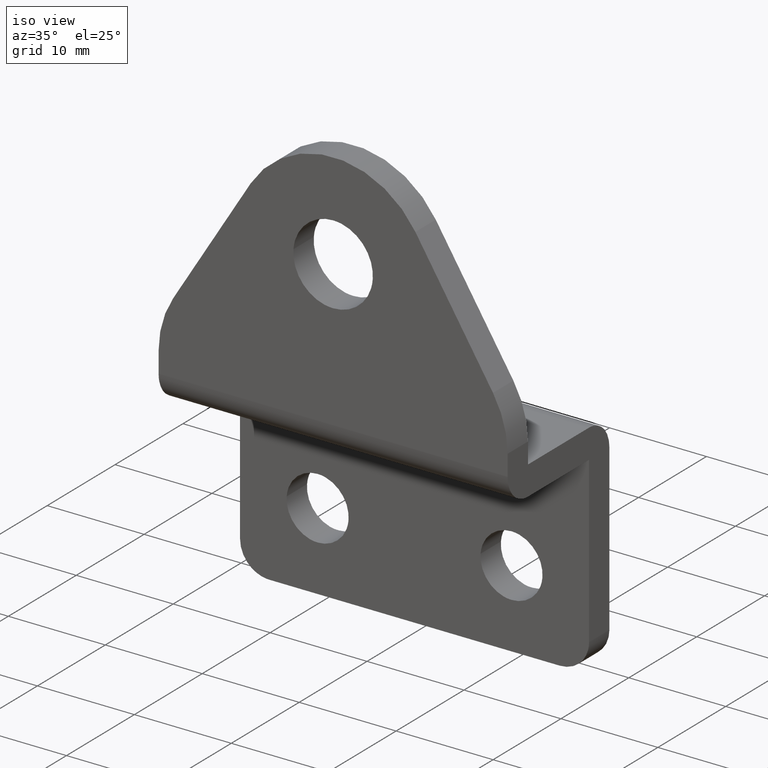
[diagram: clean part render]
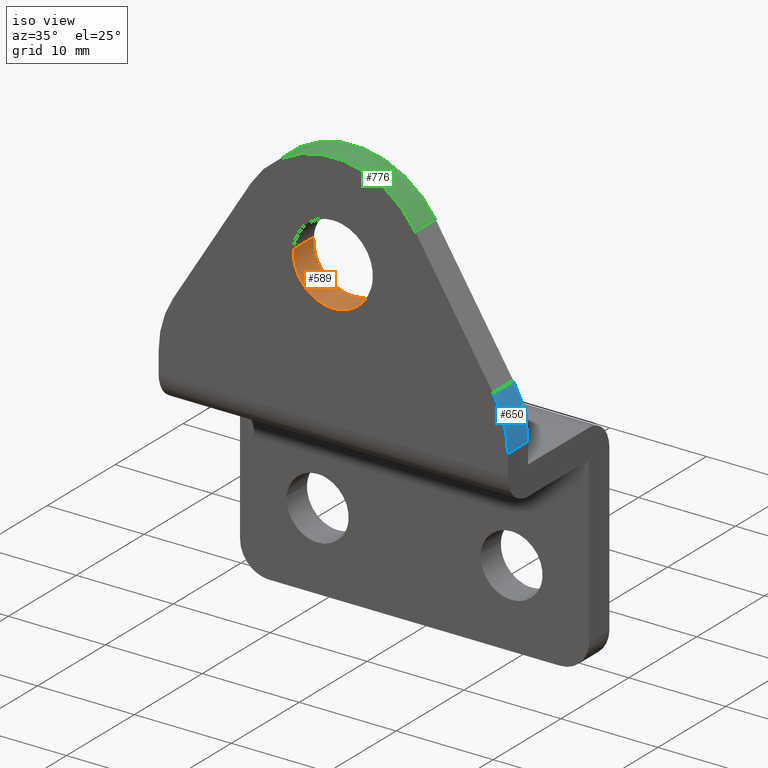
[diagram: same view with three faces highlighted in distinct colors, each labeled with its STEP entity id]
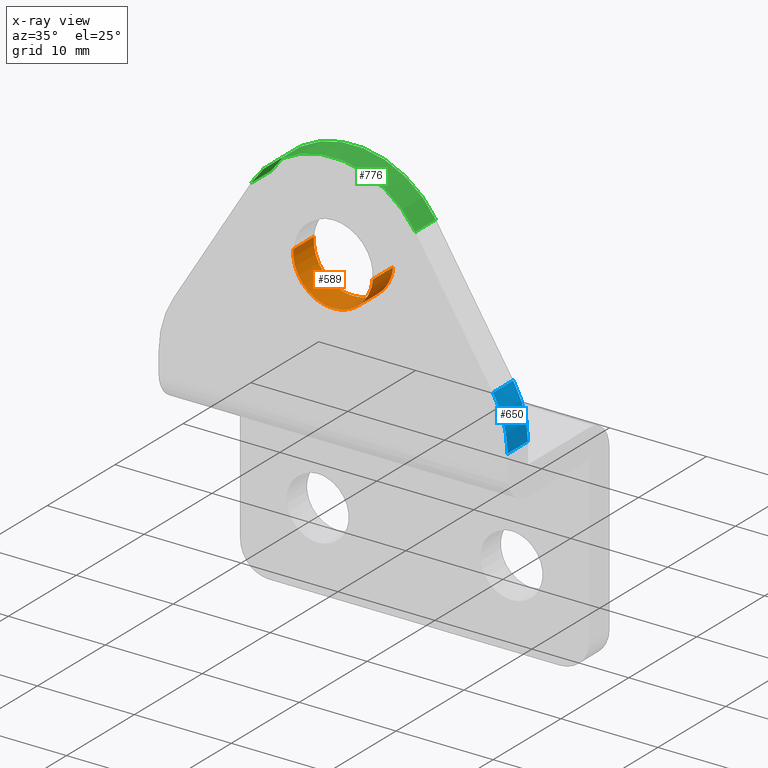
[diagram: x-ray of the same camera — body ghosted, the three highlighted faces saturated]
A machine part, iso view with three faces highlighted in distinct colors.
The next image is the same camera in x-ray (body ghosted, the three faces saturated) — at least one of them is partly hidden behind the body in this view.
Their STEP definitions:

[orange] entity #589 — the highlighted face is a freeform B-spline surface patch.
#428=CARTESIAN_POINT('',(-4.087361068302946,-15.0,38.321682292520741));
#429=VERTEX_POINT('',#428);
#443=CARTESIAN_POINT('',(-4.087361068302947,-12.000000000000121,38.321682292520741));
#444=VERTEX_POINT('',#443);
#445=CARTESIAN_POINT('',(-4.087361068302946,-15.0,38.321682292520741));
#446=CARTESIAN_POINT('',(-4.087361068302947,-12.000000000000121,38.321682292520741));
#447=QUASI_UNIFORM_CURVE('',1,(#445,#446),.UNSPECIFIED.,.F.,.U.);
#448=EDGE_CURVE('',#429,#444,#447,.T.);
#465=CARTESIAN_POINT('',(4.087361068302946,-12.000000000000121,37.678317707479259));
#466=VERTEX_POINT('',#465);
#482=CARTESIAN_POINT('',(4.087361068302946,-15.0,37.678317707479259));
#483=VERTEX_POINT('',#482);
#484=CARTESIAN_POINT('',(4.087361068302946,-15.0,37.678317707479259));
#485=CARTESIAN_POINT('',(4.087361068302946,-12.000000000000121,37.678317707479259));
#486=QUASI_UNIFORM_CURVE('',1,(#484,#485),.UNSPECIFIED.,.F.,.U.);
#487=EDGE_CURVE('',#483,#466,#486,.T.);
#507=CARTESIAN_POINT('',(4.087361068305824,-15.074999999999999,37.678317707515831));
#508=CARTESIAN_POINT('',(3.765678775821657,-15.074999999999994,33.590956639210013));
#509=CARTESIAN_POINT('',(-0.321682292484167,-15.074999999999999,33.912638931694183));
#510=CARTESIAN_POINT('',(-4.409043360789990,-15.074999999999994,34.234321224178345));
#511=CARTESIAN_POINT('',(-4.087361068305824,-15.074999999999999,38.321682292484169));
#512=CARTESIAN_POINT('',(4.087361068305824,-11.923125000000120,37.678317707515831));
#513=CARTESIAN_POINT('',(3.765678775821657,-11.923125000000120,33.590956639210013));
#514=CARTESIAN_POINT('',(-0.321682292484167,-11.923125000000120,33.912638931694183));
#515=CARTESIAN_POINT('',(-4.409043360789990,-11.923125000000120,34.234321224178345));
#516=CARTESIAN_POINT('',(-4.087361068305824,-11.923125000000120,38.321682292484169));
#524=(BOUNDED_SURFACE()B_SPLINE_SURFACE(2,1,((#507,#512),(#508,#513),(#509,#514),(#510,#515),(#511,#516)),.UNSPECIFIED.,.F.,.F.,.U.)B_SPLINE_SURFACE_WITH_KNOTS((3,2,3),(2,2),(0.0,6.793102422918762,13.586204845837520),(0.0,3.151874999999878),.UNSPECIFIED.)GEOMETRIC_REPRESENTATION_ITEM()RATIONAL_B_SPLINE_SURFACE(((1.0,1.0),(0.707106781186548,0.707106781186548),(1.0,1.0),(0.707106781186548,0.707106781186548),(1.0,1.0)))REPRESENTATION_ITEM('')SURFACE());
#525=CARTESIAN_POINT('',(0.0,-15.0,33.899999999999999));
#526=VERTEX_POINT('',#525);
#527=CARTESIAN_POINT('',(-4.087361068302946,-15.000000000000002,38.321682292520741));
#528=CARTESIAN_POINT('',(-4.100000000000001,-15.000000000000002,38.161089438768194));
#529=CARTESIAN_POINT('',(-4.100000000000001,-15.0,38.0));
#530=CARTESIAN_POINT('',(-4.100000000000001,-14.999999999999996,33.899999999999999));
#531=CARTESIAN_POINT('',(0.0,-15.0,33.899999999999999));
#539=(BOUNDED_CURVE()B_SPLINE_CURVE(2,(#527,#528,#529,#530,#531),.UNSPECIFIED.,.F.,.U.)B_SPLINE_CURVE_WITH_KNOTS((3,2,3),(0.236331300629699,0.250000000000000,0.500000000000000),.UNSPECIFIED.)CURVE()GEOMETRIC_REPRESENTATION_ITEM()RATIONAL_B_SPLINE_CURVE((0.969723356165413,0.983986122577757,1.0,0.707106781186547,1.0))REPRESENTATION_ITEM(''));
#540=EDGE_CURVE('',#429,#526,#539,.T.);
#541=ORIENTED_EDGE('',*,*,#540,.T.);
#542=CARTESIAN_POINT('',(0.0,-15.0,33.899999999999999));
#543=CARTESIAN_POINT('',(3.790001015730626,-14.999999999999996,33.899999999999991));
#544=CARTESIAN_POINT('',(4.087361068302946,-15.000000000000004,37.678317707479259));
#552=(BOUNDED_CURVE()B_SPLINE_CURVE(2,(#542,#543,#544),.UNSPECIFIED.,.F.,.U.)B_SPLINE_CURVE_WITH_KNOTS((3,3),(0.500000000000000,0.736331300629700),.UNSPECIFIED.)CURVE()GEOMETRIC_REPRESENTATION_ITEM()RATIONAL_B_SPLINE_CURVE((1.0,0.723120658608790,0.969723356165414))REPRESENTATION_ITEM(''));
#553=EDGE_CURVE('',#526,#483,#552,.T.);
#554=ORIENTED_EDGE('',*,*,#553,.T.);
#555=ORIENTED_EDGE('',*,*,#487,.T.);
#556=CARTESIAN_POINT('',(0.0,-12.000000000000121,33.899999999999999));
#557=VERTEX_POINT('',#556);
#558=CARTESIAN_POINT('',(0.0,-12.000000000000121,33.899999999999999));
#559=CARTESIAN_POINT('',(3.790001015730626,-12.000000000000121,33.899999999999991));
#560=CARTESIAN_POINT('',(4.087361068302946,-12.000000000000123,37.678317707479259));
#568=(BOUNDED_CURVE()B_SPLINE_CURVE(2,(#558,#559,#560),.UNSPECIFIED.,.F.,.U.)B_SPLINE_CURVE_WITH_KNOTS((3,3),(0.500000000000000,0.736331300629700),.UNSPECIFIED.)CURVE()GEOMETRIC_REPRESENTATION_ITEM()RATIONAL_B_SPLINE_CURVE((1.0,0.723120658608790,0.969723356165414))REPRESENTATION_ITEM(''));
#569=EDGE_CURVE('',#557,#466,#568,.T.);
#570=ORIENTED_EDGE('',*,*,#569,.F.);
#571=CARTESIAN_POINT('',(-4.087361068302947,-12.000000000000123,38.321682292520741));
#572=CARTESIAN_POINT('',(-4.100000000000001,-12.000000000000121,38.161089438768187));
#573=CARTESIAN_POINT('',(-4.100000000000001,-12.000000000000121,38.0));
#574=CARTESIAN_POINT('',(-4.100000000000001,-12.000000000000121,33.899999999999999));
#575=CARTESIAN_POINT('',(0.0,-12.000000000000121,33.899999999999999));
#583=(BOUNDED_CURVE()B_SPLINE_CURVE(2,(#571,#572,#573,#574,#575),.UNSPECIFIED.,.F.,.U.)B_SPLINE_CURVE_WITH_KNOTS((3,2,3),(0.236331300629699,0.250000000000000,0.500000000000000),.UNSPECIFIED.)CURVE()GEOMETRIC_REPRESENTATION_ITEM()RATIONAL_B_SPLINE_CURVE((0.969723356165413,0.983986122577757,1.0,0.707106781186547,1.0))REPRESENTATION_ITEM(''));
#584=EDGE_CURVE('',#444,#557,#583,.T.);
#585=ORIENTED_EDGE('',*,*,#584,.F.);
#586=ORIENTED_EDGE('',*,*,#448,.F.);
#587=EDGE_LOOP('',(#541,#554,#555,#570,#585,#586));
#588=FACE_OUTER_BOUND('',#587,.T.);
#589=ADVANCED_FACE('',(#588),#524,.F.);

[blue] entity #650 — the highlighted face is a freeform B-spline surface patch.
#590=CARTESIAN_POINT('',(17.996276749487038,-15.074999999999999,24.869994016801243));
#591=CARTESIAN_POINT('',(17.996276749487038,-11.923124999999994,24.869994016801243));
#592=CARTESIAN_POINT('',(18.082385599521832,-15.074999999999999,28.024638058278029));
#593=CARTESIAN_POINT('',(18.082385599521832,-11.923125000000001,28.024638058278029));
#594=CARTESIAN_POINT('',(16.342136355470064,-15.074999999999998,30.657265326057590));
#595=CARTESIAN_POINT('',(16.342136355470064,-11.923124999999994,30.657265326057590));
#603=(BOUNDED_SURFACE()B_SPLINE_SURFACE(1,2,((#590,#592,#594),(#591,#593,#595)),.UNSPECIFIED.,.F.,.F.,.U.)B_SPLINE_SURFACE_WITH_KNOTS((2,2),(3,3),(0.0,3.151875000000003),(0.0,6.161837180099158),.UNSPECIFIED.)GEOMETRIC_REPRESENTATION_ITEM()RATIONAL_B_SPLINE_SURFACE(((0.999866799813132,0.949828841589534,0.992156322951172),(0.999866799813132,0.949828841589534,0.992156322951172)))REPRESENTATION_ITEM('')SURFACE());
#604=CARTESIAN_POINT('',(16.490566801318948,-12.000000000000121,30.425869033588000));
#605=VERTEX_POINT('',#604);
#606=CARTESIAN_POINT('',(18.0,-12.0,25.142851392850851));
#607=VERTEX_POINT('',#606);
#608=CARTESIAN_POINT('',(16.490566801318948,-12.000000000000121,30.425869033588000));
#609=CARTESIAN_POINT('',(18.000000000000004,-12.000000000000007,27.999993468322721));
#610=CARTESIAN_POINT('',(18.0,-12.0,25.142851392850851));
#618=(BOUNDED_CURVE()B_SPLINE_CURVE(2,(#608,#609,#610),.UNSPECIFIED.,.F.,.U.)CURVE()GEOMETRIC_REPRESENTATION_ITEM()QUASI_UNIFORM_CURVE()RATIONAL_B_SPLINE_CURVE((1.0,0.961523967494284,1.0))REPRESENTATION_ITEM(''));
#619=EDGE_CURVE('',#605,#607,#618,.T.);
#620=ORIENTED_EDGE('',*,*,#619,.F.);
#621=CARTESIAN_POINT('',(16.490566801318948,-15.0,30.425869033588000));
#622=VERTEX_POINT('',#621);
#623=CARTESIAN_POINT('',(16.490566801318948,-15.0,30.425869033588000));
#624=CARTESIAN_POINT('',(16.490566801318948,-12.000000000000121,30.425869033588000));
#625=QUASI_UNIFORM_CURVE('',1,(#623,#624),.UNSPECIFIED.,.F.,.U.);
#626=EDGE_CURVE('',#622,#605,#625,.T.);
#627=ORIENTED_EDGE('',*,*,#626,.F.);
#628=CARTESIAN_POINT('',(18.0,-15.0,25.142851392850851));
#629=VERTEX_POINT('',#628);
#630=CARTESIAN_POINT('',(18.0,-15.0,25.142851392850851));
#631=CARTESIAN_POINT('',(18.0,-15.000000000000002,27.999993468322717));
#632=CARTESIAN_POINT('',(16.490566801318970,-15.0,30.425869033588022));
#640=(BOUNDED_CURVE()B_SPLINE_CURVE(2,(#630,#631,#632),.UNSPECIFIED.,.F.,.U.)CURVE()GEOMETRIC_REPRESENTATION_ITEM()QUASI_UNIFORM_CURVE()RATIONAL_B_SPLINE_CURVE((1.0,0.961523967494284,1.0))REPRESENTATION_ITEM(''));
#641=EDGE_CURVE('',#629,#622,#640,.T.);
#642=ORIENTED_EDGE('',*,*,#641,.F.);
#643=CARTESIAN_POINT('',(18.0,-12.0,25.142851392850851));
#644=CARTESIAN_POINT('',(18.0,-15.0,25.142851392850851));
#645=QUASI_UNIFORM_CURVE('',1,(#643,#644),.UNSPECIFIED.,.F.,.U.);
#646=EDGE_CURVE('',#607,#629,#645,.T.);
#647=ORIENTED_EDGE('',*,*,#646,.F.);
#648=EDGE_LOOP('',(#620,#627,#642,#647));
#649=FACE_OUTER_BOUND('',#648,.T.);
#650=ADVANCED_FACE('',(#649),#603,.T.);

[green] entity #776 — the highlighted face is a freeform B-spline surface patch.
#712=CARTESIAN_POINT('',(8.534199015224738,-15.074999999999999,43.212240474672903));
#713=CARTESIAN_POINT('',(8.534199015224738,-11.923125000000120,43.212240474672903));
#714=CARTESIAN_POINT('',(-0.493709159752075,-15.074999999999999,57.993908244154902));
#715=CARTESIAN_POINT('',(-0.493709159752075,-11.923125000000121,57.993908244154902));
#716=CARTESIAN_POINT('',(-8.781054870936764,-15.074999999999999,42.784676536850768));
#717=CARTESIAN_POINT('',(-8.781054870936764,-11.923125000000120,42.784676536850768));
#725=(BOUNDED_SURFACE()B_SPLINE_SURFACE(1,2,((#712,#714,#716),(#713,#715,#717)),.UNSPECIFIED.,.F.,.F.,.U.)B_SPLINE_SURFACE_WITH_KNOTS((2,2),(3,3),(0.0,3.151874999999878),(0.0,23.094042639728791),.UNSPECIFIED.)GEOMETRIC_REPRESENTATION_ITEM()RATIONAL_B_SPLINE_SURFACE(((1.0,0.500000000000000,1.0),(1.0,0.500000000000000,1.0)))REPRESENTATION_ITEM('')SURFACE());
#726=CARTESIAN_POINT('',(8.488389041618101,-12.000000000000121,43.286516005663742));
#727=VERTEX_POINT('',#726);
#728=CARTESIAN_POINT('',(-8.490576999999998,-12.000000000000121,43.283003999999998));
#729=VERTEX_POINT('',#728);
#730=CARTESIAN_POINT('',(8.488389041618101,-12.000000000000121,43.286516005663742));
#731=CARTESIAN_POINT('',(5.552138465564839,-12.000000000000123,48.001137704052809));
#732=CARTESIAN_POINT('',(-0.002069298322002,-12.000000000000121,47.999988846750377));
#733=CARTESIAN_POINT('',(-5.556277062208844,-12.000000000000123,47.998839989447980));
#734=CARTESIAN_POINT('',(-8.490577000000030,-12.000000000000121,43.283004000000012));
#742=(BOUNDED_CURVE()B_SPLINE_CURVE(2,(#730,#731,#732,#733,#734),.UNSPECIFIED.,.F.,.U.)B_SPLINE_CURVE_WITH_KNOTS((3,2,3),(0.0,0.500000000000000,1.0),.UNSPECIFIED.)CURVE()GEOMETRIC_REPRESENTATION_ITEM()RATIONAL_B_SPLINE_CURVE((1.0,0.874207571538665,1.0,0.874207571538665,1.0))REPRESENTATION_ITEM(''));
#743=EDGE_CURVE('',#727,#729,#742,.T.);
#744=ORIENTED_EDGE('',*,*,#743,.T.);
#745=CARTESIAN_POINT('',(-8.490576999999998,-15.0,43.283003999999998));
#746=VERTEX_POINT('',#745);
#747=CARTESIAN_POINT('',(-8.490576999999998,-15.0,43.283003999999998));
#748=CARTESIAN_POINT('',(-8.490576999999998,-12.000000000000121,43.283003999999998));
#749=QUASI_UNIFORM_CURVE('',1,(#747,#748),.UNSPECIFIED.,.F.,.U.);
#750=EDGE_CURVE('',#746,#729,#749,.T.);
#751=ORIENTED_EDGE('',*,*,#750,.F.);
#752=CARTESIAN_POINT('',(8.488389041618101,-15.0,43.286516005663742));
#753=VERTEX_POINT('',#752);
#754=CARTESIAN_POINT('',(8.488389041618101,-15.0,43.286516005663742));
#755=CARTESIAN_POINT('',(5.552138465564839,-15.000000000000002,48.001137704052809));
#756=CARTESIAN_POINT('',(-0.002069298322002,-15.0,47.999988846750377));
#757=CARTESIAN_POINT('',(-5.556277062208844,-15.000000000000002,47.998839989447980));
#758=CARTESIAN_POINT('',(-8.490577000000030,-15.0,43.283004000000012));
#766=(BOUNDED_CURVE()B_SPLINE_CURVE(2,(#754,#755,#756,#757,#758),.UNSPECIFIED.,.F.,.U.)B_SPLINE_CURVE_WITH_KNOTS((3,2,3),(0.0,0.500000000000000,1.0),.UNSPECIFIED.)CURVE()GEOMETRIC_REPRESENTATION_ITEM()RATIONAL_B_SPLINE_CURVE((1.0,0.874207571538665,1.0,0.874207571538665,1.0))REPRESENTATION_ITEM(''));
#767=EDGE_CURVE('',#753,#746,#766,.T.);
#768=ORIENTED_EDGE('',*,*,#767,.F.);
#769=CARTESIAN_POINT('',(8.488389041618101,-15.0,43.286516005663742));
#770=CARTESIAN_POINT('',(8.488389041618101,-12.000000000000121,43.286516005663742));
#771=QUASI_UNIFORM_CURVE('',1,(#769,#770),.UNSPECIFIED.,.F.,.U.);
#772=EDGE_CURVE('',#753,#727,#771,.T.);
#773=ORIENTED_EDGE('',*,*,#772,.T.);
#774=EDGE_LOOP('',(#744,#751,#768,#773));
#775=FACE_OUTER_BOUND('',#774,.T.);
#776=ADVANCED_FACE('',(#775),#725,.T.);